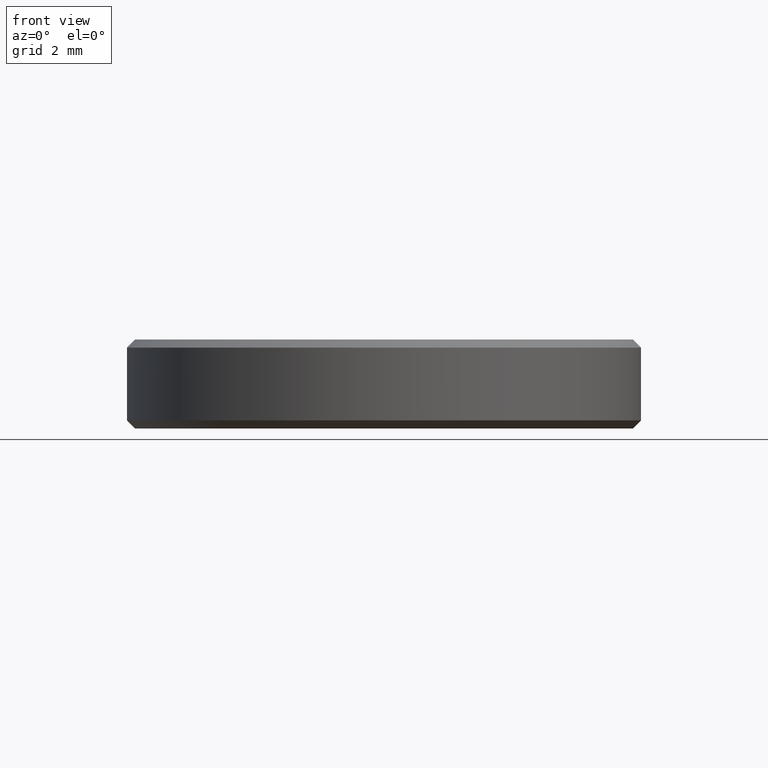
[diagram: clean part render]
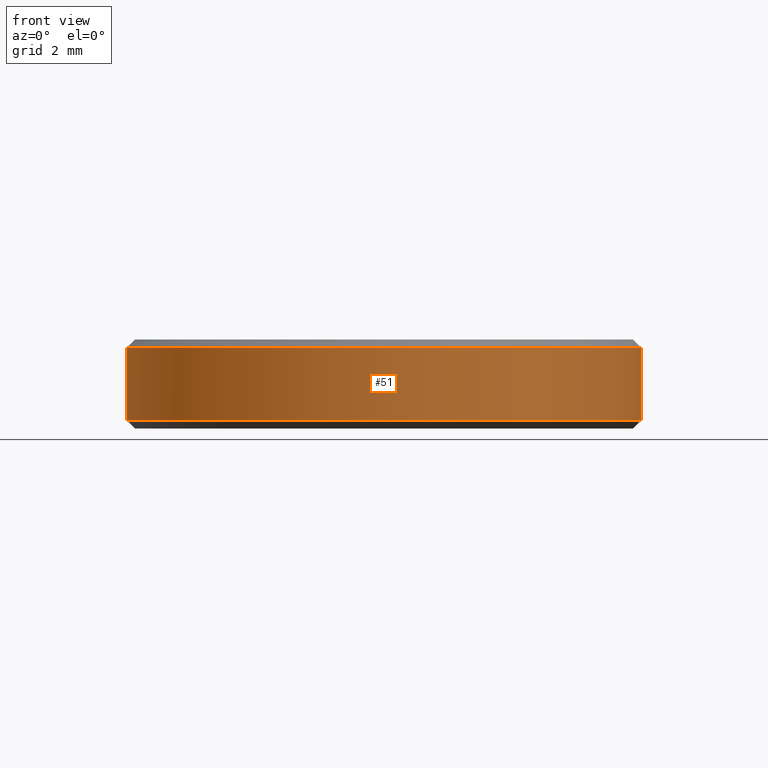
[diagram: same view with one face highlighted and labeled with its STEP entity id]
A machine part, front view. The second image highlights one B-rep face of the part: STEP entity #51.
In plain terms, the highlighted cylindrical surface (partial cylindrical patch) has radius 6.35 mm, axis along (-0, -0, -1).
Its self-contained STEP definition (entity closure, byte-faithful):
#51 = ADVANCED_FACE ( 'NONE', ( #586 ), #529, .T. ) ;
#75 = ORIENTED_EDGE ( 'NONE', *, *, #80, .T. ) ;
#80 = EDGE_CURVE ( 'NONE', #598, #155, #482, .T. ) ;
#112 = DIRECTION ( 'NONE',  ( -0.000000000000000000, -0.000000000000000000, -1.000000000000000000 ) ) ;
#133 = DIRECTION ( 'NONE',  ( 1.000000000000000000, 0.000000000000000000, 0.000000000000000000 ) ) ;
#150 = VERTEX_POINT ( 'NONE', #343 ) ;
#155 = VERTEX_POINT ( 'NONE', #277 ) ;
#158 = AXIS2_PLACEMENT_3D ( 'NONE', #182, #410, #133 ) ;
#167 = DIRECTION ( 'NONE',  ( 1.000000000000000000, 0.000000000000000000, 0.000000000000000000 ) ) ;
#182 = CARTESIAN_POINT ( 'NONE',  ( 0.000000000000000000, 0.000000000000000000, 0.1999999999999987899 ) ) ;
#199 = EDGE_CURVE ( 'NONE', #150, #378, #666, .T. ) ;
#219 = CIRCLE ( 'NONE', #618, 6.349999999999999645 ) ;
#225 = CARTESIAN_POINT ( 'NONE',  ( -6.349999999999999645, 0.000000000000000000, 2.000000000000000444 ) ) ;
#229 = VECTOR ( 'NONE', #578, 1000.000000000000000 ) ;
#277 = CARTESIAN_POINT ( 'NONE',  ( -6.349999999999999645, 0.000000000000000000, 0.1999999999999987899 ) ) ;
#286 = CARTESIAN_POINT ( 'NONE',  ( 6.349999999999999645, 7.776507174585692163E-16, 2.200000000000000178 ) ) ;
#305 = EDGE_CURVE ( 'NONE', #155, #378, #368, .T. ) ;
#319 = ORIENTED_EDGE ( 'NONE', *, *, #199, .F. ) ;
#327 = CARTESIAN_POINT ( 'NONE',  ( -6.349999999999999645, 0.000000000000000000, 2.200000000000000178 ) ) ;
#334 = DIRECTION ( 'NONE',  ( 0.000000000000000000, 0.000000000000000000, -1.000000000000000000 ) ) ;
#343 = CARTESIAN_POINT ( 'NONE',  ( 6.349999999999999645, 7.776507174585692163E-16, 2.000000000000000444 ) ) ;
#368 = CIRCLE ( 'NONE', #158, 6.349999999999999645 ) ;
#378 = VERTEX_POINT ( 'NONE', #527 ) ;
#382 = ORIENTED_EDGE ( 'NONE', *, *, #305, .T. ) ;
#405 = EDGE_LOOP ( 'NONE', ( #319, #425, #75, #382 ) ) ;
#410 = DIRECTION ( 'NONE',  ( -0.000000000000000000, -0.000000000000000000, 1.000000000000000000 ) ) ;
#420 = AXIS2_PLACEMENT_3D ( 'NONE', #478, #699, #596 ) ;
#425 = ORIENTED_EDGE ( 'NONE', *, *, #645, .T. ) ;
#446 = VECTOR ( 'NONE', #112, 1000.000000000000000 ) ;
#478 = CARTESIAN_POINT ( 'NONE',  ( 0.000000000000000000, 0.000000000000000000, 2.200000000000000178 ) ) ;
#482 = LINE ( 'NONE', #327, #229 ) ;
#484 = CARTESIAN_POINT ( 'NONE',  ( 0.000000000000000000, 0.000000000000000000, 2.000000000000000444 ) ) ;
#527 = CARTESIAN_POINT ( 'NONE',  ( 6.349999999999999645, 7.776507174585692163E-16, 0.1999999999999987899 ) ) ;
#529 = CYLINDRICAL_SURFACE ( 'NONE', #420, 6.349999999999999645 ) ;
#578 = DIRECTION ( 'NONE',  ( -0.000000000000000000, -0.000000000000000000, -1.000000000000000000 ) ) ;
#586 = FACE_OUTER_BOUND ( 'NONE', #405, .T. ) ;
#596 = DIRECTION ( 'NONE',  ( -1.000000000000000000, 0.000000000000000000, 0.000000000000000000 ) ) ;
#598 = VERTEX_POINT ( 'NONE', #225 ) ;
#618 = AXIS2_PLACEMENT_3D ( 'NONE', #484, #334, #167 ) ;
#645 = EDGE_CURVE ( 'NONE', #150, #598, #219, .T. ) ;
#666 = LINE ( 'NONE', #286, #446 ) ;
#699 = DIRECTION ( 'NONE',  ( -0.000000000000000000, -0.000000000000000000, -1.000000000000000000 ) ) ;